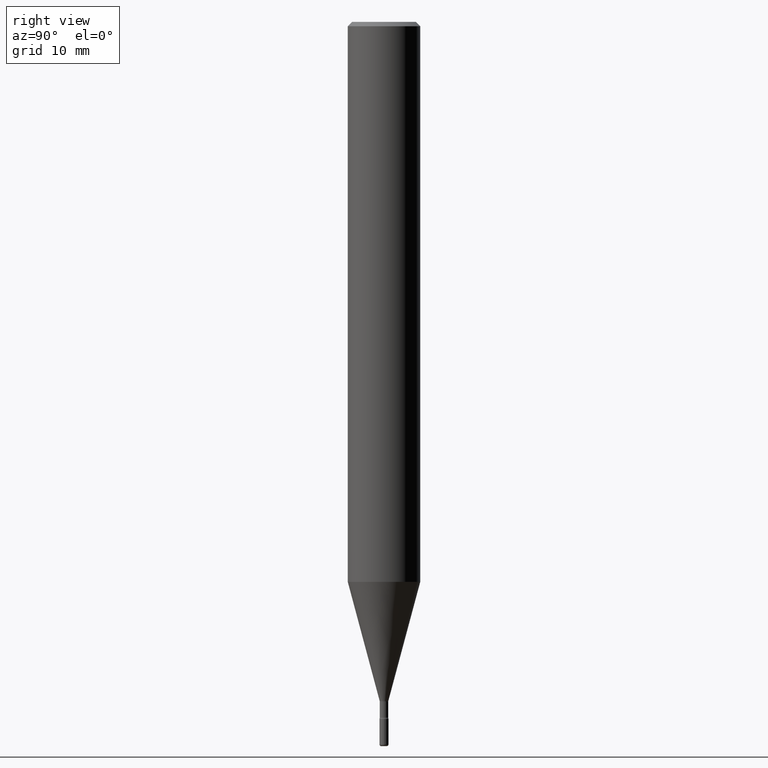
[diagram: clean part render]
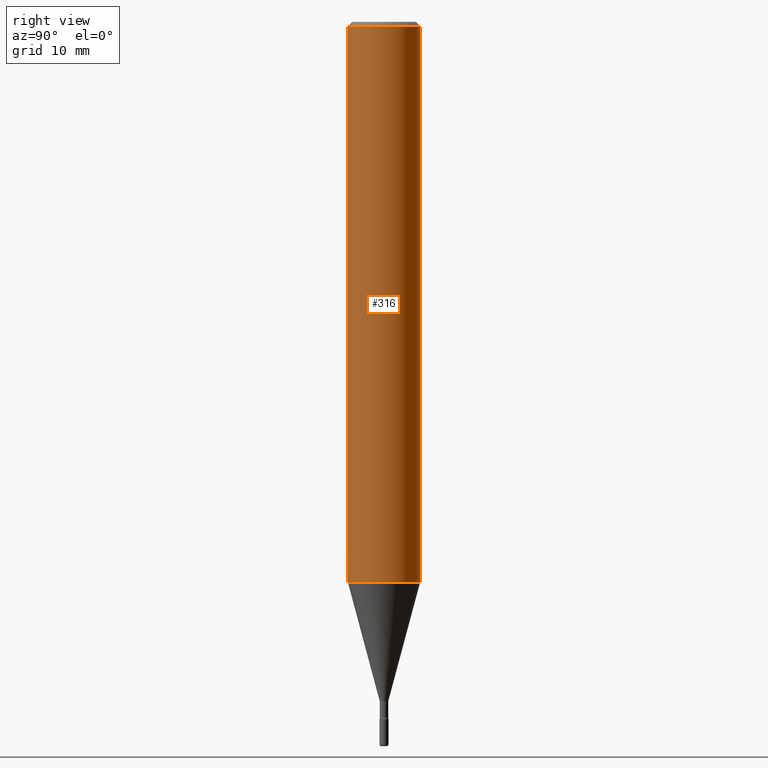
[diagram: same view with one face highlighted and labeled with its STEP entity id]
A machine part, right view. The second image highlights one B-rep face of the part: STEP entity #316.
In plain terms, the highlighted cylindrical surface (edge-blend (fillet) strip) has radius 3.175 mm, axis along (-0, 0, 1).
Its self-contained STEP definition (entity closure, byte-faithful):
#2 = ORIENTED_EDGE ( 'NONE', *, *, #518, .F. ) ;
#7 = CYLINDRICAL_SURFACE ( 'NONE', #273, 0.1250000000000000000 ) ;
#14 = LINE ( 'NONE', #183, #230 ) ;
#29 = ORIENTED_EDGE ( 'NONE', *, *, #378, .F. ) ;
#31 = EDGE_CURVE ( 'NONE', #48, #134, #43, .T. ) ;
#43 = CIRCLE ( 'NONE', #115, 0.1250000000000000000 ) ;
#48 = VERTEX_POINT ( 'NONE', #69 ) ;
#62 = CARTESIAN_POINT ( 'NONE',  ( 8.881784197001729584E-16, 0.1249999999999999584, -0.01500000000000044874 ) ) ;
#68 = CARTESIAN_POINT ( 'NONE',  ( 3.668256255974522361E-31, -5.237146042375653862E-17, -0.01500000000000001332 ) ) ;
#69 = CARTESIAN_POINT ( 'NONE',  ( -8.728703347107362044E-16, -0.1250000000000067724, -1.933168193384775080 ) ) ;
#115 = AXIS2_PLACEMENT_3D ( 'NONE', #337, #212, #516 ) ;
#134 = VERTEX_POINT ( 'NONE', #157 ) ;
#151 = CARTESIAN_POINT ( 'NONE',  ( -8.728703347107828458E-16, -0.1250000000000000555, -0.01499999999999957791 ) ) ;
#157 = CARTESIAN_POINT ( 'NONE',  ( 8.881784197001723668E-16, 0.1249999999999932554, -1.933168193384776190 ) ) ;
#164 = VERTEX_POINT ( 'NONE', #62 ) ;
#174 = VERTEX_POINT ( 'NONE', #151 ) ;
#183 = CARTESIAN_POINT ( 'NONE',  ( 8.881784197001251337E-16, 0.1250000000000000000, 4.164456202660859682E-17 ) ) ;
#193 = CARTESIAN_POINT ( 'NONE',  ( -1.169113584055446105E-44, 1.669184350826100908E-30, 4.780733988912460139E-16 ) ) ;
#212 = DIRECTION ( 'NONE',  ( -2.445504170649679612E-29, 3.491430694917099682E-15, 1.000000000000000000 ) ) ;
#230 = VECTOR ( 'NONE', #232, 39.37007874015748143 ) ;
#232 = DIRECTION ( 'NONE',  ( -2.445504170649679332E-29, 3.491430694917099288E-15, 1.000000000000000000 ) ) ;
#248 = DIRECTION ( 'NONE',  ( -6.982962677686265922E-15, -1.000000000000000000, 3.483106191921935554E-15 ) ) ;
#273 = AXIS2_PLACEMENT_3D ( 'NONE', #193, #502, #323 ) ;
#280 = DIRECTION ( 'NONE',  ( -2.445504170649679332E-29, 3.491430694917099288E-15, 1.000000000000000000 ) ) ;
#287 = DIRECTION ( 'NONE',  ( -2.445504170649679612E-29, 3.491430694917099682E-15, 1.000000000000000000 ) ) ;
#316 = ADVANCED_FACE ( 'NONE', ( #454 ), #7, .T. ) ;
#319 = EDGE_CURVE ( 'NONE', #134, #164, #14, .T. ) ;
#323 = DIRECTION ( 'NONE',  ( -6.982962677686265922E-15, -1.000000000000000000, 3.491430694917099682E-15 ) ) ;
#337 = CARTESIAN_POINT ( 'NONE',  ( 4.727570879489775223E-29, -6.749522768821041427E-15, -1.933168193384775746 ) ) ;
#338 = ORIENTED_EDGE ( 'NONE', *, *, #31, .T. ) ;
#356 = LINE ( 'NONE', #458, #501 ) ;
#378 = EDGE_CURVE ( 'NONE', #48, #174, #356, .T. ) ;
#428 = CIRCLE ( 'NONE', #523, 0.1250000000000000000 ) ;
#454 = FACE_OUTER_BOUND ( 'NONE', #513, .T. ) ;
#458 = CARTESIAN_POINT ( 'NONE',  ( -8.728703347107832402E-16, -0.1250000000000000000, 9.145022357558835235E-16 ) ) ;
#501 = VECTOR ( 'NONE', #280, 39.37007874015748143 ) ;
#502 = DIRECTION ( 'NONE',  ( -2.445504170649679612E-29, 3.491430694917099682E-15, 1.000000000000000000 ) ) ;
#513 = EDGE_LOOP ( 'NONE', ( #338, #572, #2, #29 ) ) ;
#516 = DIRECTION ( 'NONE',  ( -6.982962677686265922E-15, -1.000000000000000000, 4.370956789862821150E-15 ) ) ;
#518 = EDGE_CURVE ( 'NONE', #174, #164, #428, .T. ) ;
#523 = AXIS2_PLACEMENT_3D ( 'NONE', #68, #287, #248 ) ;
#572 = ORIENTED_EDGE ( 'NONE', *, *, #319, .T. ) ;